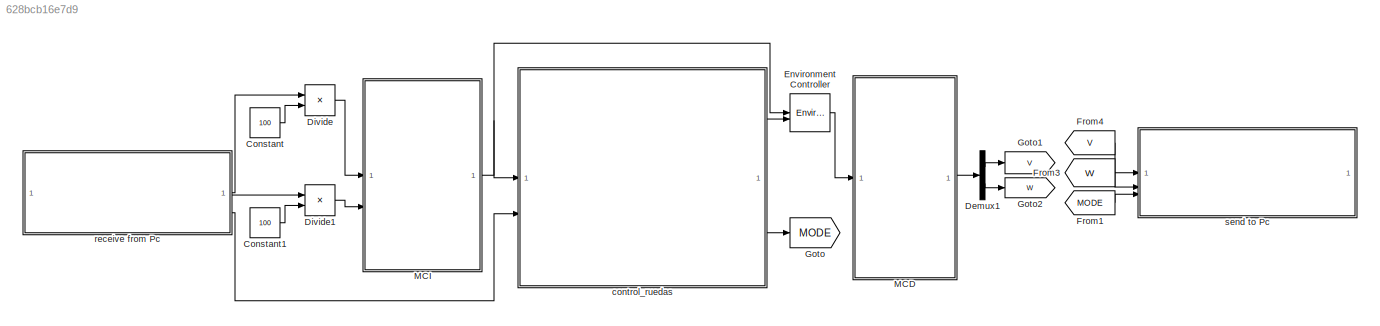
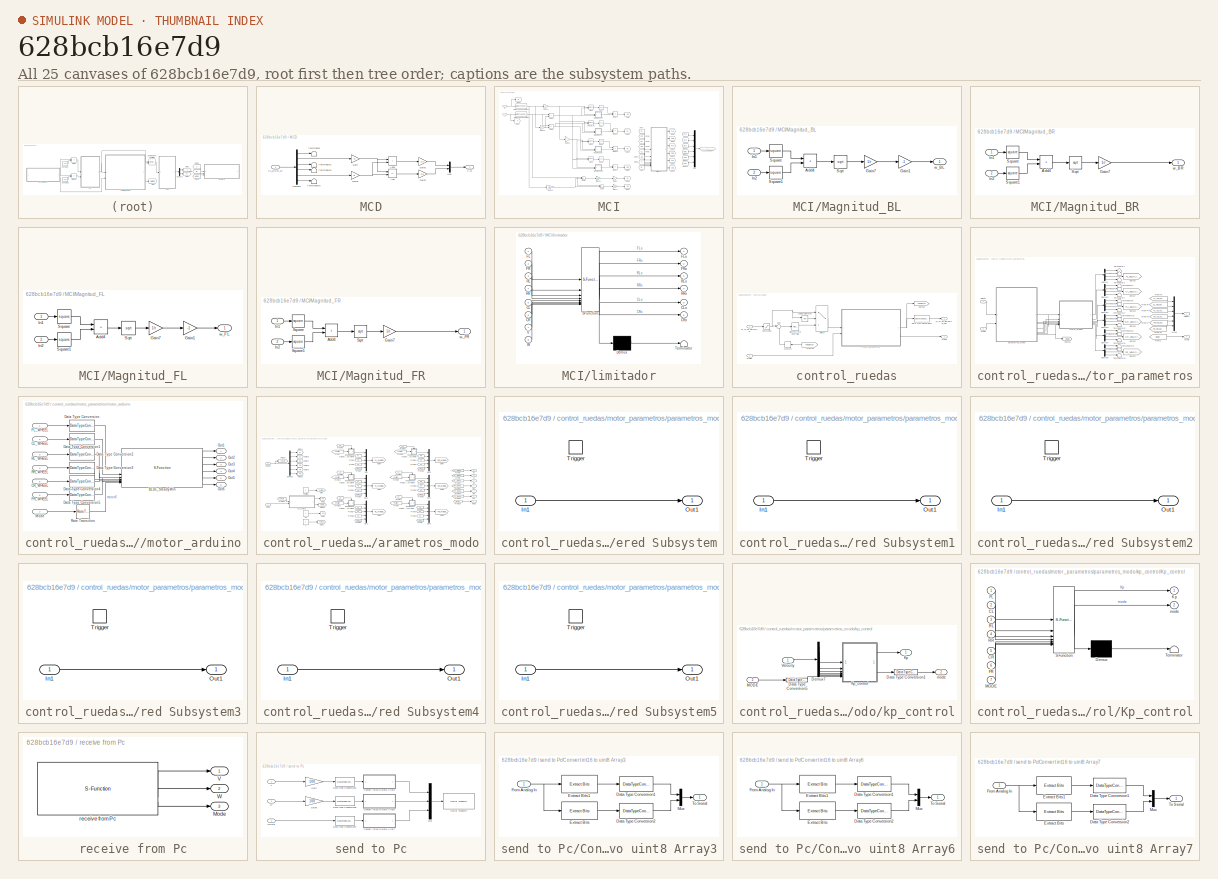
[diagram: thumbnail index - all 25 canvases of the model, root first then tree order]
MODEL slx_628bcb16e7d9
KIND model
CONFIG AbsTol = auto
CONFIG EnableMultiTasking = on
CONFIG FixedStep = auto
CONFIG InitFcn = R=0.0875;\nLx=0.24;\nLy=0.279;\nb=0.558;\nr=R;\nTs=0.01;\ncal_time=1;
CONFIG MaxStep = 0.01
CONFIG MinStep = auto
CONFIG RelTol = 1e-3
CONFIG SampleTimeConstraint = Unconstrained
CONFIG SolverName = FixedStepAuto
CONFIG StartTime = 0.0
CONFIG StopTime = inf
BLOCK [Constant] Constant
  OutDataTypeStr = single
  Value = 100
BLOCK [Constant] Constant1
  OutDataTypeStr = single
  Value = 100
BLOCK [Demux] Demux1
  Outputs = 2
BLOCK [Product] Divide
  Inputs = */
BLOCK [Product] Divide1
  Inputs = */
BLOCK [Reference] Environment Controller  REF=simulink_need_slupdate/Environment
Controller
  SourceBlock = simulink_need_slupdate/Environment\nController
  SourceType = Environment Controller
BLOCK [From] From1
  GotoTag = MODE
BLOCK [From] From3
  GotoTag = W
BLOCK [From] From4
  GotoTag = V
BLOCK [Goto] Goto
  GotoTag = MODE
BLOCK [Goto] Goto1
  GotoTag = V
BLOCK [Goto] Goto2
  GotoTag = W
BLOCK [SubSystem] MCD
BLOCK [Sum] MCD/Add
  IconShape = rectangular
  Inputs = -+
BLOCK [Sum] MCD/Add1
  IconShape = rectangular
BLOCK [Inport] MCD/CL_W,CR_W
BLOCK [Demux] MCD/Demux1
  Outputs = 6
BLOCK [Gain] MCD/Gain
  Gain = -R
BLOCK [Gain] MCD/Gain1
  Gain = R
BLOCK [Gain] MCD/Gain2
  Gain = 1/2
BLOCK [Gain] MCD/Gain3
  Gain = 1/b
  ParamDataTypeStr = double
BLOCK [Mux] MCD/Mux
  DisplayOption = bar
  Inputs = 2
BLOCK [Terminator] MCD/Terminator
BLOCK [Terminator] MCD/Terminator1
BLOCK [Terminator] MCD/Terminator2
BLOCK [Terminator] MCD/Terminator3
BLOCK [Outport] MCD/V,W
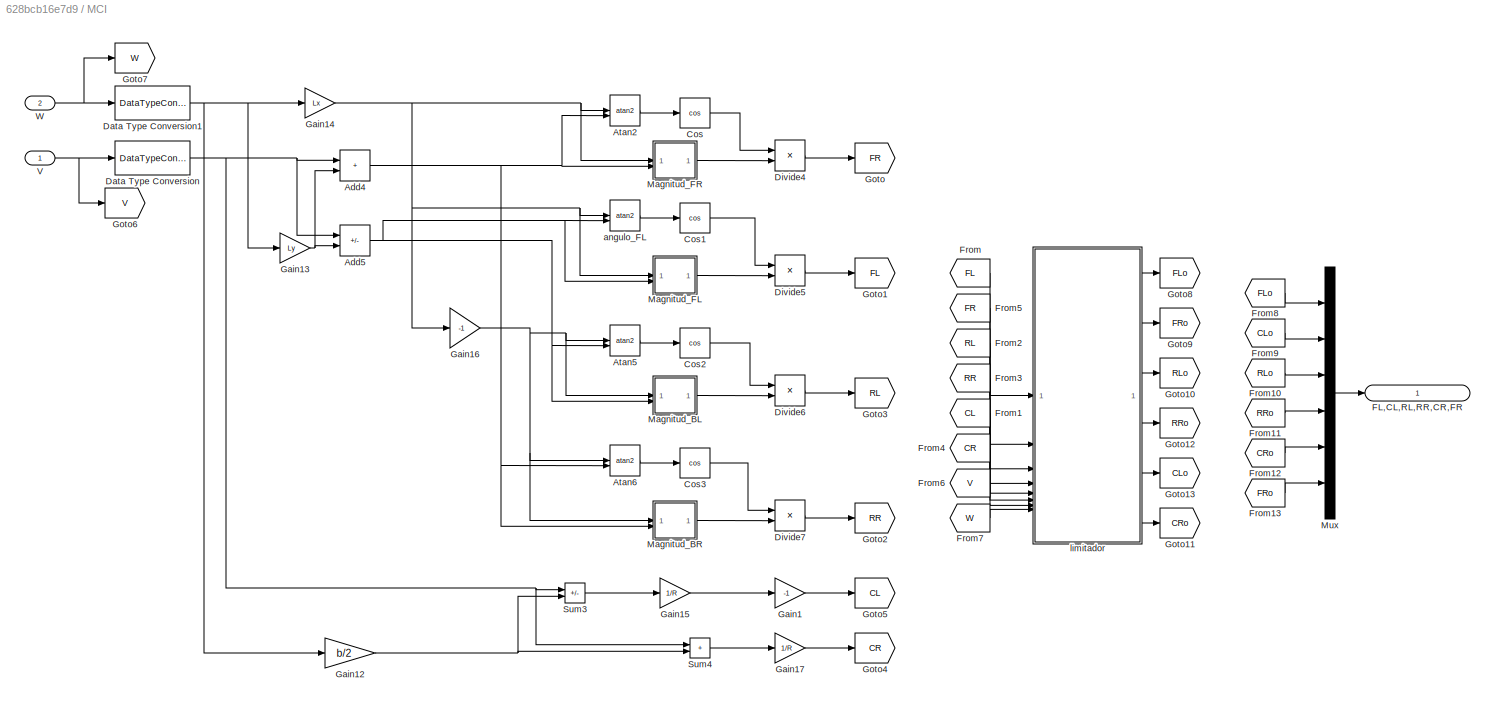
BLOCK [SubSystem] MCI
BLOCK [Sum] MCI/Add4
  IconShape = rectangular
BLOCK [Sum] MCI/Add5
  IconShape = rectangular
  Inputs = +-
BLOCK [Trigonometry] MCI/Atan2
  Operator = atan2
BLOCK [Trigonometry] MCI/Atan5
  Operator = atan2
BLOCK [Trigonometry] MCI/Atan6
  Operator = atan2
BLOCK [Trigonometry] MCI/Cos
  Operator = cos
BLOCK [Trigonometry] MCI/Cos1
  Operator = cos
BLOCK [Trigonometry] MCI/Cos2
  Operator = cos
BLOCK [Trigonometry] MCI/Cos3
  Operator = cos
BLOCK [DataTypeConversion] MCI/Data Type Conversion
  OutDataTypeStr = double
  RndMeth = Floor
  SaturateOnIntegerOverflow = off
BLOCK [DataTypeConversion] MCI/Data Type Conversion1
  OutDataTypeStr = double
  RndMeth = Floor
  SaturateOnIntegerOverflow = off
BLOCK [Product] MCI/Divide4
  Inputs = /*
BLOCK [Product] MCI/Divide5
  Inputs = /*
BLOCK [Product] MCI/Divide6
  Inputs = /*
BLOCK [Product] MCI/Divide7
  Inputs = /*
BLOCK [Outport] MCI/FL,CL,RL,RR,CR,FR
BLOCK [From] MCI/From
  GotoTag = FL
BLOCK [From] MCI/From1
  GotoTag = CL
BLOCK [From] MCI/From10
  GotoTag = RLo
BLOCK [From] MCI/From11
  GotoTag = RRo
BLOCK [From] MCI/From12
  GotoTag = CRo
BLOCK [From] MCI/From13
  GotoTag = FRo
BLOCK [From] MCI/From2
  GotoTag = RL
BLOCK [From] MCI/From3
  GotoTag = RR
BLOCK [From] MCI/From4
  GotoTag = CR
BLOCK [From] MCI/From5
  GotoTag = FR
BLOCK [From] MCI/From6
  GotoTag = V
BLOCK [From] MCI/From7
  GotoTag = W
BLOCK [From] MCI/From8
  GotoTag = FLo
BLOCK [From] MCI/From9
  GotoTag = CLo
BLOCK [Gain] MCI/Gain1
  Gain = -1
BLOCK [Gain] MCI/Gain12
  Gain = b/2
BLOCK [Gain] MCI/Gain13
  Gain = Ly
BLOCK [Gain] MCI/Gain14
  Gain = Lx
BLOCK [Gain] MCI/Gain15
  Gain = 1/R
BLOCK [Gain] MCI/Gain16
  Gain = -1
BLOCK [Gain] MCI/Gain17
  Gain = 1/R
BLOCK [Goto] MCI/Goto
  GotoTag = FR
BLOCK [Goto] MCI/Goto1
  GotoTag = FL
BLOCK [Goto] MCI/Goto10
  GotoTag = RLo
BLOCK [Goto] MCI/Goto11
  GotoTag = CRo
BLOCK [Goto] MCI/Goto12
  GotoTag = RRo
BLOCK [Goto] MCI/Goto13
  GotoTag = CLo
BLOCK [Goto] MCI/Goto2
  GotoTag = RR
BLOCK [Goto] MCI/Goto3
  GotoTag = RL
BLOCK [Goto] MCI/Goto4
  GotoTag = CR
BLOCK [Goto] MCI/Goto5
  GotoTag = CL
BLOCK [Goto] MCI/Goto6
  GotoTag = V
BLOCK [Goto] MCI/Goto7
  GotoTag = W
BLOCK [Goto] MCI/Goto8
  GotoTag = FLo
BLOCK [Goto] MCI/Goto9
  GotoTag = FRo
BLOCK [SubSystem] MCI/Magnitud_BL
BLOCK [Sum] MCI/Magnitud_BL/Add4
  IconShape = rectangular
BLOCK [Gain] MCI/Magnitud_BL/Gain1
  Gain = -1
BLOCK [Gain] MCI/Magnitud_BL/Gain7
  Gain = 1/r
BLOCK [Inport] MCI/Magnitud_BL/In1
BLOCK [Inport] MCI/Magnitud_BL/In2
  Port = 2
BLOCK [Sqrt] MCI/Magnitud_BL/Sqrt
BLOCK [Math] MCI/Magnitud_BL/Square
  Operator = square
BLOCK [Math] MCI/Magnitud_BL/Square1
  Operator = square
BLOCK [Outport] MCI/Magnitud_BL/w_BL
BLOCK [SubSystem] MCI/Magnitud_BR
BLOCK [Sum] MCI/Magnitud_BR/Add4
  IconShape = rectangular
BLOCK [Gain] MCI/Magnitud_BR/Gain7
  Gain = 1/r
BLOCK [Inport] MCI/Magnitud_BR/In1
BLOCK [Inport] MCI/Magnitud_BR/In2
  Port = 2
BLOCK [Sqrt] MCI/Magnitud_BR/Sqrt
BLOCK [Math] MCI/Magnitud_BR/Square
  Operator = square
BLOCK [Math] MCI/Magnitud_BR/Square1
  Operator = square
BLOCK [Outport] MCI/Magnitud_BR/w_BR
BLOCK [SubSystem] MCI/Magnitud_FL
BLOCK [Sum] MCI/Magnitud_FL/Add4
  IconShape = rectangular
BLOCK [Gain] MCI/Magnitud_FL/Gain1
  Gain = -1
BLOCK [Gain] MCI/Magnitud_FL/Gain7
  Gain = 1/r
BLOCK [Inport] MCI/Magnitud_FL/In1
BLOCK [Inport] MCI/Magnitud_FL/In2
  Port = 2
BLOCK [Sqrt] MCI/Magnitud_FL/Sqrt
BLOCK [Math] MCI/Magnitud_FL/Square
  Operator = square
BLOCK [Math] MCI/Magnitud_FL/Square1
  Operator = square
BLOCK [Outport] MCI/Magnitud_FL/w_FL
BLOCK [SubSystem] MCI/Magnitud_FR
BLOCK [Sum] MCI/Magnitud_FR/Add4
  IconShape = rectangular
BLOCK [Gain] MCI/Magnitud_FR/Gain7
  Gain = 1/r
BLOCK [Inport] MCI/Magnitud_FR/In1
BLOCK [Inport] MCI/Magnitud_FR/In2
  Port = 2
BLOCK [Sqrt] MCI/Magnitud_FR/Sqrt
BLOCK [Math] MCI/Magnitud_FR/Square
  Operator = square
BLOCK [Math] MCI/Magnitud_FR/Square1
  Operator = square
BLOCK [Outport] MCI/Magnitud_FR/w_FR
BLOCK [Mux] MCI/Mux
  DisplayOption = bar
  Inputs = 6
BLOCK [Sum] MCI/Sum3
  IconShape = rectangular
  Inputs = +-
BLOCK [Sum] MCI/Sum4
  IconShape = rectangular
BLOCK [Inport] MCI/V
BLOCK [Inport] MCI/W
  Port = 2
BLOCK [Trigonometry] MCI/angulo_FL
  Operator = atan2
BLOCK [SubSystem] MCI/limitador
  ErrorFcn = Stateflow.Translate.translate
  PermitHierarchicalResolution = ExplicitOnly
  SFBlockType = MATLAB Function
  TreatAsAtomicUnit = on
BLOCK [Demux] MCI/limitador/ Demux 
  Outputs = 1
BLOCK [S-Function] MCI/limitador/ SFunction 
  EnableBusSupport = on
  FunctionName = sf_sfun
  PortCounts = [8 7]
  SFcnIsStateOwnerBlock = off
  SFunctionDeploymentMode = off
  Tag = Stateflow S-Function 2
BLOCK [Terminator] MCI/limitador/ Terminator 
BLOCK [Inport] MCI/limitador/CL
  Port = 5
BLOCK [Outport] MCI/limitador/CLo
  Port = 5
BLOCK [Inport] MCI/limitador/CR
  Port = 6
BLOCK [Outport] MCI/limitador/CRo
  Port = 6
BLOCK [Inport] MCI/limitador/FL
BLOCK [Outport] MCI/limitador/FLo
BLOCK [Inport] MCI/limitador/FR
  Port = 2
BLOCK [Outport] MCI/limitador/FRo
  Port = 2
BLOCK [Inport] MCI/limitador/RL
  Port = 3
BLOCK [Outport] MCI/limitador/RLo
  Port = 3
BLOCK [Inport] MCI/limitador/RR
  Port = 4
BLOCK [Outport] MCI/limitador/RRo
  Port = 4
BLOCK [Inport] MCI/limitador/V
  Port = 7
BLOCK [Inport] MCI/limitador/W
  Port = 8
BLOCK [SubSystem] control_ruedas
BLOCK [DataTypeConversion] control_ruedas/Data Type Conversion1
  OutDataTypeStr = double
  RndMeth = Floor
  SaturateOnIntegerOverflow = off
BLOCK [Reference] control_ruedas/Discrete PID Controller  REF=slpidlib/PID Controller
  SourceBlock = slpidlib/PID Controller
  SourceType = PID 1dof
BLOCK [Inport] control_ruedas/FL,CL,RL,RR,CR,FR
BLOCK [Outport] control_ruedas/FL,CL,RL,RR,CR,FR_VEL
BLOCK [From] control_ruedas/From48
  GotoTag = FEEDBACK
  NameLocation = top
BLOCK [Goto] control_ruedas/Goto22
  GotoTag = FEEDBACK
BLOCK [Logic] control_ruedas/Logical Operator
  AllPortsSameDT = off
  Operator = NOT
  OutDataTypeStr = boolean
BLOCK [Inport] control_ruedas/MODE
  Port = 2
BLOCK [Memory] control_ruedas/Memory
  NameLocation = top
BLOCK [Saturate] control_ruedas/Saturation
  LowerLimit = -10
  UpperLimit = 10
BLOCK [Sum] control_ruedas/Sum
  Inputs = |+-
BLOCK [Switch] control_ruedas/Switch
  Criteria = u2 ~= 0
  InputSameDT = off
  NameLocation = top
  SaturateOnIntegerOverflow = off
BLOCK [Outport] control_ruedas/mode
  Port = 2
BLOCK [SubSystem] control_ruedas/motor_parametros
BLOCK [Demux] control_ruedas/motor_parametros/Demux
BLOCK [Demux] control_ruedas/motor_parametros/Demux1
BLOCK [Demux] control_ruedas/motor_parametros/Demux2
BLOCK [Demux] control_ruedas/motor_parametros/Demux3
BLOCK [Demux] control_ruedas/motor_parametros/Demux4
BLOCK [Demux] control_ruedas/motor_parametros/Demux5
BLOCK [From] control_ruedas/motor_parametros/From18
  GotoTag = FR_VELOCITY
BLOCK [From] control_ruedas/motor_parametros/From2
  GotoTag = MODE
BLOCK [From] control_ruedas/motor_parametros/From43
  GotoTag = FL_VELOCITY
BLOCK [From] control_ruedas/motor_parametros/From44
  GotoTag = RL_VELOCITY
BLOCK [From] control_ruedas/motor_parametros/From45
  GotoTag = RR_VELOCITY
BLOCK [From] control_ruedas/motor_parametros/From46
  GotoTag = CL_VELOCITY
BLOCK [From] control_ruedas/motor_parametros/From47
  GotoTag = CR_VELOCITY
BLOCK [Goto] control_ruedas/motor_parametros/Goto16
  GotoTag = FL_VELOCITY
BLOCK [Goto] control_ruedas/motor_parametros/Goto17
  GotoTag = CL_VELOCITY
BLOCK [Goto] control_ruedas/motor_parametros/Goto18
  GotoTag = RL_VELOCITY
BLOCK [Goto] control_ruedas/motor_parametros/Goto19
  GotoTag = RR_VELOCITY
BLOCK [Goto] control_ruedas/motor_parametros/Goto20
  GotoTag = CR_VELOCITY
BLOCK [Goto] control_ruedas/motor_parametros/Goto21
  GotoTag = FR_VELOCITY
BLOCK [Goto] control_ruedas/motor_parametros/Goto31
  GotoTag = MODE
BLOCK [Inport] control_ruedas/motor_parametros/Mode
  Port = 2
BLOCK [Mux] control_ruedas/motor_parametros/Mux8
  DisplayOption = bar
  Inputs = 6
BLOCK [Terminator] control_ruedas/motor_parametros/Terminator1
BLOCK [Terminator] control_ruedas/motor_parametros/Terminator10
BLOCK [Terminator] control_ruedas/motor_parametros/Terminator11
BLOCK [Terminator] control_ruedas/motor_parametros/Terminator12
BLOCK [Terminator] control_ruedas/motor_parametros/Terminator13
BLOCK [Terminator] control_ruedas/motor_parametros/Terminator14
BLOCK [Terminator] control_ruedas/motor_parametros/Terminator15
BLOCK [Terminator] control_ruedas/motor_parametros/Terminator16
BLOCK [Terminator] control_ruedas/motor_parametros/Terminator17
BLOCK [Terminator] control_ruedas/motor_parametros/Terminator18
BLOCK [Terminator] control_ruedas/motor_parametros/Terminator2
BLOCK [Terminator] control_ruedas/motor_parametros/Terminator3
BLOCK [Terminator] control_ruedas/motor_parametros/Terminator4
BLOCK [Terminator] control_ruedas/motor_parametros/Terminator5
BLOCK [Terminator] control_ruedas/motor_parametros/Terminator6
BLOCK [Terminator] control_ruedas/motor_parametros/Terminator7
BLOCK [Terminator] control_ruedas/motor_parametros/Terminator8
BLOCK [Terminator] control_ruedas/motor_parametros/Terminator9
BLOCK [Inport] control_ruedas/motor_parametros/Velocity
BLOCK [Outport] control_ruedas/motor_parametros/mode
  Port = 2
BLOCK [SubSystem] control_ruedas/motor_parametros/motor_arduino
BLOCK [S-Function] control_ruedas/motor_parametros/motor_arduino/BLDC_SteadyWin
  CopyFcn = set_param(gcbh,'LinkStatus','none')
  EnableBusSupport = off
  FunctionName = BLDC_SteadyWin
  InitFcn = try, set_param(gcb,'FunctionName','BLDC_SteadyWin'), end
  OpenFcn = sfunctionwizard(gcbh)
  PreSaveFcn = try, set_param(gcb,'FunctionName','BLDC_SteadyWin'), end
  SFcnIsStateOwnerBlock = off
  SFunctionDeploymentMode = off
  SFunctionModules = BLDC_SteadyWin_wrapper
BLOCK [Inport] control_ruedas/motor_parametros/motor_arduino/CL_WHEEL
  Port = 2
BLOCK [Inport] control_ruedas/motor_parametros/motor_arduino/CR_WHEEL
  Port = 5
BLOCK [DataTypeConversion] control_ruedas/motor_parametros/motor_arduino/Data Type Conversion
  OutDataTypeStr = single
  RndMeth = Floor
  SaturateOnIntegerOverflow = off
BLOCK [DataTypeConversion] control_ruedas/motor_parametros/motor_arduino/Data Type Conversion1
  OutDataTypeStr = single
  RndMeth = Floor
  SaturateOnIntegerOverflow = off
BLOCK [DataTypeConversion] control_ruedas/motor_parametros/motor_arduino/Data Type Conversion2
  OutDataTypeStr = single
  RndMeth = Floor
  SaturateOnIntegerOverflow = off
BLOCK [DataTypeConversion] control_ruedas/motor_parametros/motor_arduino/Data Type Conversion3
  OutDataTypeStr = single
  RndMeth = Floor
  SaturateOnIntegerOverflow = off
BLOCK [DataTypeConversion] control_ruedas/motor_parametros/motor_arduino/Data Type Conversion4
  OutDataTypeStr = single
  RndMeth = Floor
  SaturateOnIntegerOverflow = off
BLOCK [DataTypeConversion] control_ruedas/motor_parametros/motor_arduino/Data Type Conversion5
  OutDataTypeStr = single
  RndMeth = Floor
  SaturateOnIntegerOverflow = off
BLOCK [Inport] control_ruedas/motor_parametros/motor_arduino/FL_WHEEL
BLOCK [Inport] control_ruedas/motor_parametros/motor_arduino/FR_WHEEL
  Port = 6
BLOCK [Inport] control_ruedas/motor_parametros/motor_arduino/Mode
  Port = 7
BLOCK [Outport] control_ruedas/motor_parametros/motor_arduino/Out1
BLOCK [Outport] control_ruedas/motor_parametros/motor_arduino/Out2
  Port = 2
BLOCK [Outport] control_ruedas/motor_parametros/motor_arduino/Out3
  Port = 3
BLOCK [Outport] control_ruedas/motor_parametros/motor_arduino/Out4
  Port = 4
BLOCK [Outport] control_ruedas/motor_parametros/motor_arduino/Out5
  Port = 5
BLOCK [Outport] control_ruedas/motor_parametros/motor_arduino/Out6
  Port = 6
BLOCK [Inport] control_ruedas/motor_parametros/motor_arduino/RL_WHEEL
  Port = 3
BLOCK [Inport] control_ruedas/motor_parametros/motor_arduino/RR_WHEEL
  Port = 4
BLOCK [RateTransition] control_ruedas/motor_parametros/motor_arduino/Rate Transition
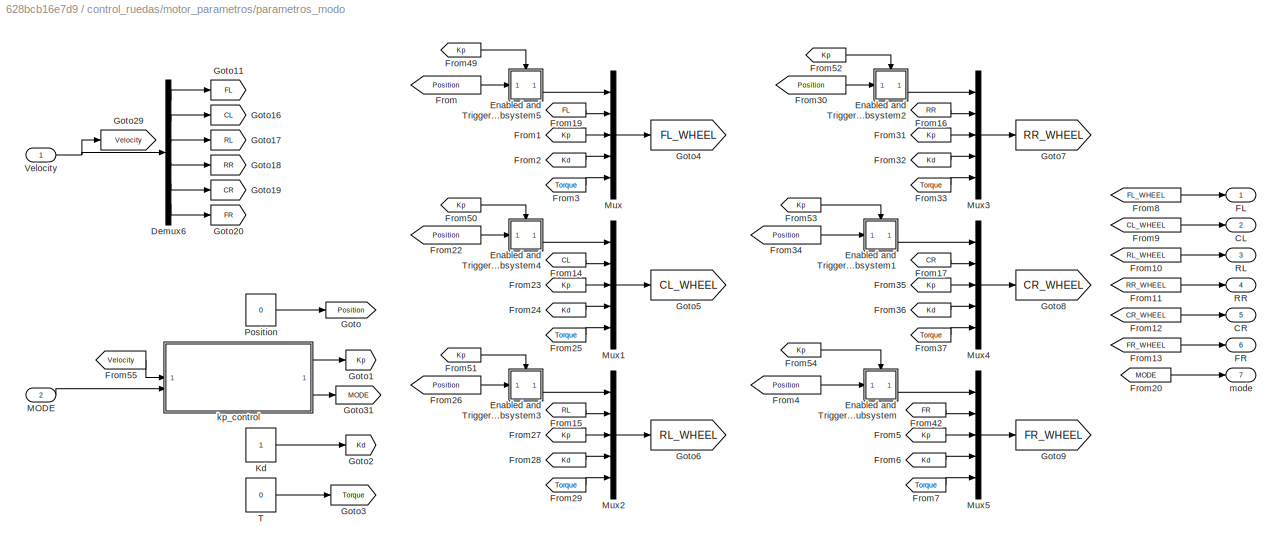
BLOCK [SubSystem] control_ruedas/motor_parametros/parametros_modo
BLOCK [Outport] control_ruedas/motor_parametros/parametros_modo/CL
  Port = 2
BLOCK [Outport] control_ruedas/motor_parametros/parametros_modo/CR
  Port = 5
BLOCK [Demux] control_ruedas/motor_parametros/parametros_modo/Demux6
  Outputs = 6
BLOCK [SubSystem] control_ruedas/motor_parametros/parametros_modo/Enabled and Triggered Subsystem
  TreatAsAtomicUnit = on
BLOCK [Inport] control_ruedas/motor_parametros/parametros_modo/Enabled and Triggered Subsystem/In1
BLOCK [Outport] control_ruedas/motor_parametros/parametros_modo/Enabled and Triggered Subsystem/Out1
BLOCK [TriggerPort] control_ruedas/motor_parametros/parametros_modo/Enabled and Triggered Subsystem/Trigger
  StatesWhenEnabling = held
  VariantControl = Variant
BLOCK [SubSystem] control_ruedas/motor_parametros/parametros_modo/Enabled and Triggered Subsystem1
  TreatAsAtomicUnit = on
BLOCK [Inport] control_ruedas/motor_parametros/parametros_modo/Enabled and Triggered Subsystem1/In1
BLOCK [Outport] control_ruedas/motor_parametros/parametros_modo/Enabled and Triggered Subsystem1/Out1
BLOCK [TriggerPort] control_ruedas/motor_parametros/parametros_modo/Enabled and Triggered Subsystem1/Trigger
  StatesWhenEnabling = held
  VariantControl = Variant
BLOCK [SubSystem] control_ruedas/motor_parametros/parametros_modo/Enabled and Triggered Subsystem2
  TreatAsAtomicUnit = on
BLOCK [Inport] control_ruedas/motor_parametros/parametros_modo/Enabled and Triggered Subsystem2/In1
BLOCK [Outport] control_ruedas/motor_parametros/parametros_modo/Enabled and Triggered Subsystem2/Out1
BLOCK [TriggerPort] control_ruedas/motor_parametros/parametros_modo/Enabled and Triggered Subsystem2/Trigger
  StatesWhenEnabling = held
  VariantControl = Variant
BLOCK [SubSystem] control_ruedas/motor_parametros/parametros_modo/Enabled and Triggered Subsystem3
  TreatAsAtomicUnit = on
BLOCK [Inport] control_ruedas/motor_parametros/parametros_modo/Enabled and Triggered Subsystem3/In1
BLOCK [Outport] control_ruedas/motor_parametros/parametros_modo/Enabled and Triggered Subsystem3/Out1
BLOCK [TriggerPort] control_ruedas/motor_parametros/parametros_modo/Enabled and Triggered Subsystem3/Trigger
  StatesWhenEnabling = held
  VariantControl = Variant
BLOCK [SubSystem] control_ruedas/motor_parametros/parametros_modo/Enabled and Triggered Subsystem4
  TreatAsAtomicUnit = on
BLOCK [Inport] control_ruedas/motor_parametros/parametros_modo/Enabled and Triggered Subsystem4/In1
BLOCK [Outport] control_ruedas/motor_parametros/parametros_modo/Enabled and Triggered Subsystem4/Out1
BLOCK [TriggerPort] control_ruedas/motor_parametros/parametros_modo/Enabled and Triggered Subsystem4/Trigger
  StatesWhenEnabling = held
  VariantControl = Variant
BLOCK [SubSystem] control_ruedas/motor_parametros/parametros_modo/Enabled and Triggered Subsystem5
  TreatAsAtomicUnit = on
BLOCK [Inport] control_ruedas/motor_parametros/parametros_modo/Enabled and Triggered Subsystem5/In1
BLOCK [Outport] control_ruedas/motor_parametros/parametros_modo/Enabled and Triggered Subsystem5/Out1
BLOCK [TriggerPort] control_ruedas/motor_parametros/parametros_modo/Enabled and Triggered Subsystem5/Trigger
  StatesWhenEnabling = held
  VariantControl = Variant
BLOCK [Outport] control_ruedas/motor_parametros/parametros_modo/FL
BLOCK [Outport] control_ruedas/motor_parametros/parametros_modo/FR
  Port = 6
BLOCK [From] control_ruedas/motor_parametros/parametros_modo/From
  GotoTag = Position
BLOCK [From] control_ruedas/motor_parametros/parametros_modo/From1
  GotoTag = Kp
BLOCK [From] control_ruedas/motor_parametros/parametros_modo/From10
  GotoTag = RL_WHEEL
BLOCK [From] control_ruedas/motor_parametros/parametros_modo/From11
  GotoTag = RR_WHEEL
BLOCK [From] control_ruedas/motor_parametros/parametros_modo/From12
  GotoTag = CR_WHEEL
BLOCK [From] control_ruedas/motor_parametros/parametros_modo/From13
  GotoTag = FR_WHEEL
BLOCK [From] control_ruedas/motor_parametros/parametros_modo/From14
  GotoTag = CL
BLOCK [From] control_ruedas/motor_parametros/parametros_modo/From15
  GotoTag = RL
BLOCK [From] control_ruedas/motor_parametros/parametros_modo/From16
  GotoTag = RR
BLOCK [From] control_ruedas/motor_parametros/parametros_modo/From17
  GotoTag = CR
BLOCK [From] control_ruedas/motor_parametros/parametros_modo/From19
  GotoTag = FL
BLOCK [From] control_ruedas/motor_parametros/parametros_modo/From2
  GotoTag = Kd
BLOCK [From] control_ruedas/motor_parametros/parametros_modo/From20
  GotoTag = MODE
BLOCK [From] control_ruedas/motor_parametros/parametros_modo/From22
  GotoTag = Position
BLOCK [From] control_ruedas/motor_parametros/parametros_modo/From23
  GotoTag = Kp
BLOCK [From] control_ruedas/motor_parametros/parametros_modo/From24
  GotoTag = Kd
BLOCK [From] control_ruedas/motor_parametros/parametros_modo/From25
  GotoTag = Torque
BLOCK [From] control_ruedas/motor_parametros/parametros_modo/From26
  GotoTag = Position
BLOCK [From] control_ruedas/motor_parametros/parametros_modo/From27
  GotoTag = Kp
BLOCK [From] control_ruedas/motor_parametros/parametros_modo/From28
  GotoTag = Kd
BLOCK [From] control_ruedas/motor_parametros/parametros_modo/From29
  GotoTag = Torque
BLOCK [From] control_ruedas/motor_parametros/parametros_modo/From3
  GotoTag = Torque
BLOCK [From] control_ruedas/motor_parametros/parametros_modo/From30
  GotoTag = Position
BLOCK [From] control_ruedas/motor_parametros/parametros_modo/From31
  GotoTag = Kp
  NameLocation = top
BLOCK [From] control_ruedas/motor_parametros/parametros_modo/From32
  GotoTag = Kd
BLOCK [From] control_ruedas/motor_parametros/parametros_modo/From33
  GotoTag = Torque
BLOCK [From] control_ruedas/motor_parametros/parametros_modo/From34
  GotoTag = Position
BLOCK [From] control_ruedas/motor_parametros/parametros_modo/From35
  GotoTag = Kp
BLOCK [From] control_ruedas/motor_parametros/parametros_modo/From36
  GotoTag = Kd
BLOCK [From] control_ruedas/motor_parametros/parametros_modo/From37
  GotoTag = Torque
BLOCK [From] control_ruedas/motor_parametros/parametros_modo/From4
  GotoTag = Position
BLOCK [From] control_ruedas/motor_parametros/parametros_modo/From42
  GotoTag = FR
BLOCK [From] control_ruedas/motor_parametros/parametros_modo/From49
  GotoTag = Kp
BLOCK [From] control_ruedas/motor_parametros/parametros_modo/From5
  GotoTag = Kp
BLOCK [From] control_ruedas/motor_parametros/parametros_modo/From50
  GotoTag = Kp
BLOCK [From] control_ruedas/motor_parametros/parametros_modo/From51
  GotoTag = Kp
BLOCK [From] control_ruedas/motor_parametros/parametros_modo/From52
  GotoTag = Kp
BLOCK [From] control_ruedas/motor_parametros/parametros_modo/From53
  GotoTag = Kp
BLOCK [From] control_ruedas/motor_parametros/parametros_modo/From54
  GotoTag = Kp
BLOCK [From] control_ruedas/motor_parametros/parametros_modo/From55
  GotoTag = Velocity
BLOCK [From] control_ruedas/motor_parametros/parametros_modo/From6
  GotoTag = Kd
BLOCK [From] control_ruedas/motor_parametros/parametros_modo/From7
  GotoTag = Torque
BLOCK [From] control_ruedas/motor_parametros/parametros_modo/From8
  GotoTag = FL_WHEEL
BLOCK [From] control_ruedas/motor_parametros/parametros_modo/From9
  GotoTag = CL_WHEEL
BLOCK [Goto] control_ruedas/motor_parametros/parametros_modo/Goto
  GotoTag = Position
BLOCK [Goto] control_ruedas/motor_parametros/parametros_modo/Goto1
  GotoTag = Kp
BLOCK [Goto] control_ruedas/motor_parametros/parametros_modo/Goto11
  GotoTag = FL
BLOCK [Goto] control_ruedas/motor_parametros/parametros_modo/Goto16
  GotoTag = CL
BLOCK [Goto] control_ruedas/motor_parametros/parametros_modo/Goto17
  GotoTag = RL
BLOCK [Goto] control_ruedas/motor_parametros/parametros_modo/Goto18
  GotoTag = RR
BLOCK [Goto] control_ruedas/motor_parametros/parametros_modo/Goto19
  GotoTag = CR
BLOCK [Goto] control_ruedas/motor_parametros/parametros_modo/Goto2
  GotoTag = Kd
BLOCK [Goto] control_ruedas/motor_parametros/parametros_modo/Goto20
  GotoTag = FR
BLOCK [Goto] control_ruedas/motor_parametros/parametros_modo/Goto29
  GotoTag = Velocity
BLOCK [Goto] control_ruedas/motor_parametros/parametros_modo/Goto3
  GotoTag = Torque
BLOCK [Goto] control_ruedas/motor_parametros/parametros_modo/Goto31
  GotoTag = MODE
BLOCK [Goto] control_ruedas/motor_parametros/parametros_modo/Goto4
  GotoTag = FL_WHEEL
BLOCK [Goto] control_ruedas/motor_parametros/parametros_modo/Goto5
  GotoTag = CL_WHEEL
BLOCK [Goto] control_ruedas/motor_parametros/parametros_modo/Goto6
  GotoTag = RL_WHEEL
BLOCK [Goto] control_ruedas/motor_parametros/parametros_modo/Goto7
  GotoTag = RR_WHEEL
BLOCK [Goto] control_ruedas/motor_parametros/parametros_modo/Goto8
  GotoTag = CR_WHEEL
BLOCK [Goto] control_ruedas/motor_parametros/parametros_modo/Goto9
  GotoTag = FR_WHEEL
BLOCK [Constant] control_ruedas/motor_parametros/parametros_modo/Kd
  SampleTime = -1
BLOCK [Inport] control_ruedas/motor_parametros/parametros_modo/MODE
  Port = 2
BLOCK [Mux] control_ruedas/motor_parametros/parametros_modo/Mux
  DisplayOption = bar
  Inputs = 5
BLOCK [Mux] control_ruedas/motor_parametros/parametros_modo/Mux1
  DisplayOption = bar
  Inputs = 5
BLOCK [Mux] control_ruedas/motor_parametros/parametros_modo/Mux2
  DisplayOption = bar
  Inputs = 5
BLOCK [Mux] control_ruedas/motor_parametros/parametros_modo/Mux3
  DisplayOption = bar
  Inputs = 5
BLOCK [Mux] control_ruedas/motor_parametros/parametros_modo/Mux4
  DisplayOption = bar
  Inputs = 5
BLOCK [Mux] control_ruedas/motor_parametros/parametros_modo/Mux5
  DisplayOption = bar
  Inputs = 5
BLOCK [Constant] control_ruedas/motor_parametros/parametros_modo/Position
  SampleTime = -1
  Value = 0
BLOCK [Outport] control_ruedas/motor_parametros/parametros_modo/RL
  Port = 3
BLOCK [Outport] control_ruedas/motor_parametros/parametros_modo/RR
  Port = 4
BLOCK [Constant] control_ruedas/motor_parametros/parametros_modo/T
  SampleTime = -1
  Value = 0
BLOCK [Inport] control_ruedas/motor_parametros/parametros_modo/Velocity
BLOCK [SubSystem] control_ruedas/motor_parametros/parametros_modo/kp_control
BLOCK [DataTypeConversion] control_ruedas/motor_parametros/parametros_modo/kp_control/Data Type Conversion1
  OutDataTypeStr = uint8
  RndMeth = Floor
  SaturateOnIntegerOverflow = off
BLOCK [DataTypeConversion] control_ruedas/motor_parametros/parametros_modo/kp_control/Data Type Conversion5
  OutDataTypeStr = double
  RndMeth = Floor
  SaturateOnIntegerOverflow = off
BLOCK [Demux] control_ruedas/motor_parametros/parametros_modo/kp_control/Demux7
  Outputs = 6
BLOCK [Outport] control_ruedas/motor_parametros/parametros_modo/kp_control/Kp
BLOCK [SubSystem] control_ruedas/motor_parametros/parametros_modo/kp_control/Kp_control
  ErrorFcn = Stateflow.Translate.translate
  PermitHierarchicalResolution = ExplicitOnly
  SFBlockType = MATLAB Function
  TreatAsAtomicUnit = on
BLOCK [Demux] control_ruedas/motor_parametros/parametros_modo/kp_control/Kp_control/ Demux 
  Outputs = 1
BLOCK [S-Function] control_ruedas/motor_parametros/parametros_modo/kp_control/Kp_control/ SFunction 
  EnableBusSupport = on
  FunctionName = sf_sfun
  PortCounts = [7 3]
  SFcnIsStateOwnerBlock = off
  SFunctionDeploymentMode = off
  Tag = Stateflow S-Function 1
BLOCK [Terminator] control_ruedas/motor_parametros/parametros_modo/kp_control/Kp_control/ Terminator 
BLOCK [Inport] control_ruedas/motor_parametros/parametros_modo/kp_control/Kp_control/CL
  Port = 2
BLOCK [Inport] control_ruedas/motor_parametros/parametros_modo/kp_control/Kp_control/CR
  Port = 5
BLOCK [Inport] control_ruedas/motor_parametros/parametros_modo/kp_control/Kp_control/FL
BLOCK [Inport] control_ruedas/motor_parametros/parametros_modo/kp_control/Kp_control/FR
  Port = 6
BLOCK [Outport] control_ruedas/motor_parametros/parametros_modo/kp_control/Kp_control/Kp
BLOCK [Inport] control_ruedas/motor_parametros/parametros_modo/kp_control/Kp_control/MODE
  Port = 7
BLOCK [Inport] control_ruedas/motor_parametros/parametros_modo/kp_control/Kp_control/RL
  Port = 3
BLOCK [Inport] control_ruedas/motor_parametros/parametros_modo/kp_control/Kp_control/RR
  Port = 4
BLOCK [Outport] control_ruedas/motor_parametros/parametros_modo/kp_control/Kp_control/mode
  Port = 2
BLOCK [Inport] control_ruedas/motor_parametros/parametros_modo/kp_control/MODE
  Port = 2
BLOCK [Inport] control_ruedas/motor_parametros/parametros_modo/kp_control/Velocity
BLOCK [Outport] control_ruedas/motor_parametros/parametros_modo/kp_control/mode
  Port = 2
BLOCK [Outport] control_ruedas/motor_parametros/parametros_modo/mode
  Port = 7
BLOCK [Outport] control_ruedas/motor_parametros/velocity
BLOCK [SubSystem] receive from Pc
BLOCK [Outport] receive from Pc/Mode
  Port = 3
BLOCK [Outport] receive from Pc/V
BLOCK [Outport] receive from Pc/W
  Port = 2
BLOCK [S-Function] receive from Pc/receive from Pc
  CopyFcn = set_param(gcbh,'LinkStatus','none')
  EnableBusSupport = off
  FunctionName = receive_serial
  InitFcn = try, set_param(gcb,'FunctionName','receive_serial'), end
  OpenFcn = sfunctionwizard(gcbh)
  PreSaveFcn = try, set_param(gcb,'FunctionName','receive_serial'), end
  SFcnIsStateOwnerBlock = off
  SFunctionDeploymentMode = off
  SFunctionModules = receive_serial_wrapper
BLOCK [SubSystem] send to Pc
BLOCK [SubSystem] send to Pc/Convert int16 to uint8 Array3
BLOCK [DataTypeConversion] send to Pc/Convert int16 to uint8 Array3/Data Type Conversion1
  ConvertRealWorld = Stored Integer (SI)
  OutDataTypeStr = uint8
  RndMeth = Floor
  SaturateOnIntegerOverflow = off
BLOCK [DataTypeConversion] send to Pc/Convert int16 to uint8 Array3/Data Type Conversion2
  ConvertRealWorld = Stored Integer (SI)
  OutDataTypeStr = uint8
  RndMeth = Floor
  SaturateOnIntegerOverflow = off
BLOCK [Reference] send to Pc/Convert int16 to uint8 Array3/Extract Bits  REF=simulink/Logic and Bit
Operations/Extract Bits
  SourceBlock = simulink/Logic and Bit\nOperations/Extract Bits
  SourceType = Extract Bits
BLOCK [Reference] send to Pc/Convert int16 to uint8 Array3/Extract Bits1  REF=simulink/Logic and Bit
Operations/Extract Bits
  SourceBlock = simulink/Logic and Bit\nOperations/Extract Bits
  SourceType = Extract Bits
BLOCK [Inport] send to Pc/Convert int16 to uint8 Array3/From Analog In
BLOCK [Mux] send to Pc/Convert int16 to uint8 Array3/Mux
  DisplayOption = bar
  Inputs = 2
BLOCK [Outport] send to Pc/Convert int16 to uint8 Array3/To Serial
BLOCK [SubSystem] send to Pc/Convert int16 to uint8 Array6
BLOCK [DataTypeConversion] send to Pc/Convert int16 to uint8 Array6/Data Type Conversion1
  ConvertRealWorld = Stored Integer (SI)
  OutDataTypeStr = uint8
  RndMeth = Floor
  SaturateOnIntegerOverflow = off
BLOCK [DataTypeConversion] send to Pc/Convert int16 to uint8 Array6/Data Type Conversion2
  ConvertRealWorld = Stored Integer (SI)
  OutDataTypeStr = uint8
  RndMeth = Floor
  SaturateOnIntegerOverflow = off
BLOCK [Reference] send to Pc/Convert int16 to uint8 Array6/Extract Bits  REF=simulink/Logic and Bit
Operations/Extract Bits
  SourceBlock = simulink/Logic and Bit\nOperations/Extract Bits
  SourceType = Extract Bits
BLOCK [Reference] send to Pc/Convert int16 to uint8 Array6/Extract Bits1  REF=simulink/Logic and Bit
Operations/Extract Bits
  SourceBlock = simulink/Logic and Bit\nOperations/Extract Bits
  SourceType = Extract Bits
BLOCK [Inport] send to Pc/Convert int16 to uint8 Array6/From Analog In
BLOCK [Mux] send to Pc/Convert int16 to uint8 Array6/Mux
  DisplayOption = bar
  Inputs = 2
BLOCK [Outport] send to Pc/Convert int16 to uint8 Array6/To Serial
BLOCK [SubSystem] send to Pc/Convert int16 to uint8 Array7
BLOCK [DataTypeConversion] send to Pc/Convert int16 to uint8 Array7/Data Type Conversion1
  ConvertRealWorld = Stored Integer (SI)
  OutDataTypeStr = uint8
  RndMeth = Floor
  SaturateOnIntegerOverflow = off
BLOCK [DataTypeConversion] send to Pc/Convert int16 to uint8 Array7/Data Type Conversion2
  ConvertRealWorld = Stored Integer (SI)
  OutDataTypeStr = uint8
  RndMeth = Floor
  SaturateOnIntegerOverflow = off
BLOCK [Reference] send to Pc/Convert int16 to uint8 Array7/Extract Bits  REF=simulink/Logic and Bit
Operations/Extract Bits
  SourceBlock = simulink/Logic and Bit\nOperations/Extract Bits
  SourceType = Extract Bits
BLOCK [Reference] send to Pc/Convert int16 to uint8 Array7/Extract Bits1  REF=simulink/Logic and Bit
Operations/Extract Bits
  SourceBlock = simulink/Logic and Bit\nOperations/Extract Bits
  SourceType = Extract Bits
BLOCK [Inport] send to Pc/Convert int16 to uint8 Array7/From Analog In
BLOCK [Mux] send to Pc/Convert int16 to uint8 Array7/Mux
  DisplayOption = bar
  Inputs = 2
BLOCK [Outport] send to Pc/Convert int16 to uint8 Array7/To Serial
BLOCK [DataTypeConversion] send to Pc/Data Type Conversion1
  ConvertRealWorld = Stored Integer (SI)
  OutDataTypeStr = int16
  RndMeth = Floor
  SaturateOnIntegerOverflow = off
BLOCK [DataTypeConversion] send to Pc/Data Type Conversion6
  ConvertRealWorld = Stored Integer (SI)
  OutDataTypeStr = int16
  RndMeth = Floor
  SaturateOnIntegerOverflow = off
BLOCK [DataTypeConversion] send to Pc/Data Type Conversion7
  ConvertRealWorld = Stored Integer (SI)
  OutDataTypeStr = int16
  RndMeth = Floor
  SaturateOnIntegerOverflow = off
BLOCK [Gain] send to Pc/Gain
  Gain = 100
BLOCK [Gain] send to Pc/Gain5
  Gain = 100
BLOCK [Inport] send to Pc/MODE
  Port = 3
BLOCK [Mux] send to Pc/Mux
  DisplayOption = bar
  Inputs = 3
BLOCK [Reference] send to Pc/Serial Transmit  REF=arduinolib/Serial Transmit
  SourceBlock = arduinolib/Serial Transmit
  SourceType = Arduino Serial Transmit
BLOCK [Inport] send to Pc/V
BLOCK [Inport] send to Pc/W
  Port = 2
LINE Constant1:1 -> Divide1:2
LINE Constant:1 -> Divide:2
LINE Demux1:1 -> Goto1:1
LINE Demux1:2 -> Goto2:1
LINE Divide1:1 -> MCI:2
LINE Divide:1 -> MCI:1
LINE Environment Controller:1 -> MCD:1
LINE From1:1 -> send to Pc:3
LINE From3:1 -> send to Pc:2
LINE From4:1 -> send to Pc:1
LINE MCD/Add1:1 -> MCD/Gain2:1
LINE MCD/Add:1 -> MCD/Gain3:1
LINE MCD/CL_W,CR_W:1 -> MCD/Demux1:1
LINE MCD/Demux1:1 -> MCD/Terminator:1
LINE MCD/Demux1:2 -> MCD/Gain:1
LINE MCD/Demux1:3 -> MCD/Terminator1:1
LINE MCD/Demux1:4 -> MCD/Terminator2:1
LINE MCD/Demux1:5 -> MCD/Gain1:1
LINE MCD/Demux1:6 -> MCD/Terminator3:1
NET MCD/Gain1:1 -> MCD/Add1:2, MCD/Add:2
LINE MCD/Gain2:1 -> MCD/Mux:1
LINE MCD/Gain3:1 -> MCD/Mux:2
NET MCD/Gain:1 -> MCD/Add1:1, MCD/Add:1
LINE MCD/Mux:1 -> MCD/V,W:1
LINE MCD:1 -> Demux1:1
NET MCI/Add4:1 -> MCI/Atan2:2, MCI/Atan6:2, MCI/Magnitud_BR:2, MCI/Magnitud_FR:2
NET MCI/Add5:1 -> MCI/Atan5:2, MCI/Magnitud_BL:2, MCI/Magnitud_FL:2, MCI/angulo_FL:2
LINE MCI/Atan2:1 -> MCI/Cos:1
LINE MCI/Atan5:1 -> MCI/Cos2:1
LINE MCI/Atan6:1 -> MCI/Cos3:1
LINE MCI/Cos1:1 -> MCI/Divide5:1
LINE MCI/Cos2:1 -> MCI/Divide6:1
LINE MCI/Cos3:1 -> MCI/Divide7:1
LINE MCI/Cos:1 -> MCI/Divide4:1
NET MCI/Data Type Conversion1:1 -> MCI/Gain12:1, MCI/Gain13:1, MCI/Gain14:1
NET MCI/Data Type Conversion:1 -> MCI/Add4:1, MCI/Add5:1, MCI/Sum3:1, MCI/Sum4:1
LINE MCI/Divide4:1 -> MCI/Goto:1
LINE MCI/Divide5:1 -> MCI/Goto1:1
LINE MCI/Divide6:1 -> MCI/Goto3:1
LINE MCI/Divide7:1 -> MCI/Goto2:1
LINE MCI/From10:1 -> MCI/Mux:3
LINE MCI/From11:1 -> MCI/Mux:4
LINE MCI/From12:1 -> MCI/Mux:5
LINE MCI/From13:1 -> MCI/Mux:6
LINE MCI/From1:1 -> MCI/limitador:5
LINE MCI/From2:1 -> MCI/limitador:3
LINE MCI/From3:1 -> MCI/limitador:4
LINE MCI/From4:1 -> MCI/limitador:6
LINE MCI/From5:1 -> MCI/limitador:2
LINE MCI/From6:1 -> MCI/limitador:7
LINE MCI/From7:1 -> MCI/limitador:8
LINE MCI/From8:1 -> MCI/Mux:1
LINE MCI/From9:1 -> MCI/Mux:2
LINE MCI/From:1 -> MCI/limitador:1
NET MCI/Gain12:1 -> MCI/Sum3:2, MCI/Sum4:2
NET MCI/Gain13:1 -> MCI/Add4:2, MCI/Add5:2
NET MCI/Gain14:1 -> MCI/Atan2:1, MCI/Gain16:1, MCI/Magnitud_FL:1, MCI/Magnitud_FR:1, MCI/angulo_FL:1
LINE MCI/Gain15:1 -> MCI/Gain1:1
NET MCI/Gain16:1 -> MCI/Atan5:1, MCI/Atan6:1, MCI/Magnitud_BL:1, MCI/Magnitud_BR:1
LINE MCI/Gain17:1 -> MCI/Goto4:1
LINE MCI/Gain1:1 -> MCI/Goto5:1
LINE MCI/Magnitud_BL/Add4:1 -> MCI/Magnitud_BL/Sqrt:1
LINE MCI/Magnitud_BL/Gain1:1 -> MCI/Magnitud_BL/w_BL:1
LINE MCI/Magnitud_BL/Gain7:1 -> MCI/Magnitud_BL/Gain1:1
LINE MCI/Magnitud_BL/In1:1 -> MCI/Magnitud_BL/Square:1
LINE MCI/Magnitud_BL/In2:1 -> MCI/Magnitud_BL/Square1:1
LINE MCI/Magnitud_BL/Sqrt:1 -> MCI/Magnitud_BL/Gain7:1
LINE MCI/Magnitud_BL/Square1:1 -> MCI/Magnitud_BL/Add4:2
LINE MCI/Magnitud_BL/Square:1 -> MCI/Magnitud_BL/Add4:1
LINE MCI/Magnitud_BL:1 -> MCI/Divide6:2
LINE MCI/Magnitud_BR/Add4:1 -> MCI/Magnitud_BR/Sqrt:1
LINE MCI/Magnitud_BR/Gain7:1 -> MCI/Magnitud_BR/w_BR:1
LINE MCI/Magnitud_BR/In1:1 -> MCI/Magnitud_BR/Square:1
LINE MCI/Magnitud_BR/In2:1 -> MCI/Magnitud_BR/Square1:1
LINE MCI/Magnitud_BR/Sqrt:1 -> MCI/Magnitud_BR/Gain7:1
LINE MCI/Magnitud_BR/Square1:1 -> MCI/Magnitud_BR/Add4:2
LINE MCI/Magnitud_BR/Square:1 -> MCI/Magnitud_BR/Add4:1
LINE MCI/Magnitud_BR:1 -> MCI/Divide7:2
LINE MCI/Magnitud_FL/Add4:1 -> MCI/Magnitud_FL/Sqrt:1
LINE MCI/Magnitud_FL/Gain1:1 -> MCI/Magnitud_FL/w_FL:1
LINE MCI/Magnitud_FL/Gain7:1 -> MCI/Magnitud_FL/Gain1:1
LINE MCI/Magnitud_FL/In1:1 -> MCI/Magnitud_FL/Square:1
LINE MCI/Magnitud_FL/In2:1 -> MCI/Magnitud_FL/Square1:1
LINE MCI/Magnitud_FL/Sqrt:1 -> MCI/Magnitud_FL/Gain7:1
LINE MCI/Magnitud_FL/Square1:1 -> MCI/Magnitud_FL/Add4:2
LINE MCI/Magnitud_FL/Square:1 -> MCI/Magnitud_FL/Add4:1
LINE MCI/Magnitud_FL:1 -> MCI/Divide5:2
LINE MCI/Magnitud_FR/Add4:1 -> MCI/Magnitud_FR/Sqrt:1
LINE MCI/Magnitud_FR/Gain7:1 -> MCI/Magnitud_FR/w_FR:1
LINE MCI/Magnitud_FR/In1:1 -> MCI/Magnitud_FR/Square:1
LINE MCI/Magnitud_FR/In2:1 -> MCI/Magnitud_FR/Square1:1
LINE MCI/Magnitud_FR/Sqrt:1 -> MCI/Magnitud_FR/Gain7:1
LINE MCI/Magnitud_FR/Square1:1 -> MCI/Magnitud_FR/Add4:2
LINE MCI/Magnitud_FR/Square:1 -> MCI/Magnitud_FR/Add4:1
LINE MCI/Magnitud_FR:1 -> MCI/Divide4:2
LINE MCI/Mux:1 -> MCI/FL,CL,RL,RR,CR,FR:1
LINE MCI/Sum3:1 -> MCI/Gain15:1
LINE MCI/Sum4:1 -> MCI/Gain17:1
NET MCI/V:1 -> MCI/Data Type Conversion:1, MCI/Goto6:1
NET MCI/W:1 -> MCI/Data Type Conversion1:1, MCI/Goto7:1
LINE MCI/angulo_FL:1 -> MCI/Cos1:1
LINE MCI/limitador:1 -> MCI/Goto8:1
LINE MCI/limitador:2 -> MCI/Goto9:1
LINE MCI/limitador:3 -> MCI/Goto10:1
LINE MCI/limitador:4 -> MCI/Goto12:1
LINE MCI/limitador:5 -> MCI/Goto13:1
LINE MCI/limitador:6 -> MCI/Goto11:1
NET MCI:1 -> Environment Controller:1, control_ruedas:1
LINE control_ruedas/Data Type Conversion1:1 -> control_ruedas/FL,CL,RL,RR,CR,FR_VEL:1
LINE control_ruedas/Discrete PID Controller:1 -> control_ruedas/Switch:3
LINE control_ruedas/FL,CL,RL,RR,CR,FR:1 -> control_ruedas/Saturation:1
LINE control_ruedas/From48:1 -> control_ruedas/Memory:1
LINE control_ruedas/Logical Operator:1 -> control_ruedas/Switch:2
LINE control_ruedas/MODE:1 -> control_ruedas/motor_parametros:2
LINE control_ruedas/Memory:1 -> control_ruedas/Sum:2
NET control_ruedas/Saturation:1 -> control_ruedas/Logical Operator:1, control_ruedas/Sum:1, control_ruedas/Switch:1
LINE control_ruedas/Sum:1 -> control_ruedas/Discrete PID Controller:1
LINE control_ruedas/Switch:1 -> control_ruedas/motor_parametros:1
LINE control_ruedas/motor_parametros/Demux1:1 -> control_ruedas/motor_parametros/Terminator4:1
LINE control_ruedas/motor_parametros/Demux1:2 -> control_ruedas/motor_parametros/Terminator3:1
LINE control_ruedas/motor_parametros/Demux1:3 -> control_ruedas/motor_parametros/Goto17:1
LINE control_ruedas/motor_parametros/Demux1:4 -> control_ruedas/motor_parametros/Terminator7:1
LINE control_ruedas/motor_parametros/Demux2:1 -> control_ruedas/motor_parametros/Terminator6:1
LINE control_ruedas/motor_parametros/Demux2:2 -> control_ruedas/motor_parametros/Terminator5:1
LINE control_ruedas/motor_parametros/Demux2:3 -> control_ruedas/motor_parametros/Goto18:1
LINE control_ruedas/motor_parametros/Demux2:4 -> control_ruedas/motor_parametros/Terminator17:1
LINE control_ruedas/motor_parametros/Demux3:1 -> control_ruedas/motor_parametros/Terminator10:1
LINE control_ruedas/motor_parametros/Demux3:2 -> control_ruedas/motor_parametros/Terminator9:1
LINE control_ruedas/motor_parametros/Demux3:3 -> control_ruedas/motor_parametros/Goto19:1
LINE control_ruedas/motor_parametros/Demux3:4 -> control_ruedas/motor_parametros/Terminator12:1
LINE control_ruedas/motor_parametros/Demux4:1 -> control_ruedas/motor_parametros/Terminator8:1
LINE control_ruedas/motor_parametros/Demux4:2 -> control_ruedas/motor_parametros/Terminator11:1
LINE control_ruedas/motor_parametros/Demux4:3 -> control_ruedas/motor_parametros/Goto20:1
LINE control_ruedas/motor_parametros/Demux4:4 -> control_ruedas/motor_parametros/Terminator16:1
LINE control_ruedas/motor_parametros/Demux5:1 -> control_ruedas/motor_parametros/Terminator14:1
LINE control_ruedas/motor_parametros/Demux5:2 -> control_ruedas/motor_parametros/Terminator13:1
LINE control_ruedas/motor_parametros/Demux5:3 -> control_ruedas/motor_parametros/Goto21:1
LINE control_ruedas/motor_parametros/Demux5:4 -> control_ruedas/motor_parametros/Terminator15:1
LINE control_ruedas/motor_parametros/Demux:1 -> control_ruedas/motor_parametros/Terminator1:1
LINE control_ruedas/motor_parametros/Demux:2 -> control_ruedas/motor_parametros/Terminator18:1
LINE control_ruedas/motor_parametros/Demux:3 -> control_ruedas/motor_parametros/Goto16:1
LINE control_ruedas/motor_parametros/Demux:4 -> control_ruedas/motor_parametros/Terminator2:1
LINE control_ruedas/motor_parametros/From18:1 -> control_ruedas/motor_parametros/Mux8:6
LINE control_ruedas/motor_parametros/From2:1 -> control_ruedas/motor_parametros/mode:1
LINE control_ruedas/motor_parametros/From43:1 -> control_ruedas/motor_parametros/Mux8:1
LINE control_ruedas/motor_parametros/From44:1 -> control_ruedas/motor_parametros/Mux8:3
LINE control_ruedas/motor_parametros/From45:1 -> control_ruedas/motor_parametros/Mux8:4
LINE control_ruedas/motor_parametros/From46:1 -> control_ruedas/motor_parametros/Mux8:2
LINE control_ruedas/motor_parametros/From47:1 -> control_ruedas/motor_parametros/Mux8:5
LINE control_ruedas/motor_parametros/Mode:1 -> control_ruedas/motor_parametros/parametros_modo:2
LINE control_ruedas/motor_parametros/Mux8:1 -> control_ruedas/motor_parametros/velocity:1
LINE control_ruedas/motor_parametros/Velocity:1 -> control_ruedas/motor_parametros/parametros_modo:1
LINE control_ruedas/motor_parametros/motor_arduino/BLDC_SteadyWin:1 -> control_ruedas/motor_parametros/motor_arduino/Out1:1
LINE control_ruedas/motor_parametros/motor_arduino/BLDC_SteadyWin:2 -> control_ruedas/motor_parametros/motor_arduino/Out2:1
LINE control_ruedas/motor_parametros/motor_arduino/BLDC_SteadyWin:3 -> control_ruedas/motor_parametros/motor_arduino/Out3:1
LINE control_ruedas/motor_parametros/motor_arduino/BLDC_SteadyWin:4 -> control_ruedas/motor_parametros/motor_arduino/Out4:1
LINE control_ruedas/motor_parametros/motor_arduino/BLDC_SteadyWin:5 -> control_ruedas/motor_parametros/motor_arduino/Out5:1
LINE control_ruedas/motor_parametros/motor_arduino/BLDC_SteadyWin:6 -> control_ruedas/motor_parametros/motor_arduino/Out6:1
LINE control_ruedas/motor_parametros/motor_arduino/CL_WHEEL:1 -> control_ruedas/motor_parametros/motor_arduino/Data Type Conversion1:1
LINE control_ruedas/motor_parametros/motor_arduino/CR_WHEEL:1 -> control_ruedas/motor_parametros/motor_arduino/Data Type Conversion4:1
LINE control_ruedas/motor_parametros/motor_arduino/Data Type Conversion1:1 -> control_ruedas/motor_parametros/motor_arduino/BLDC_SteadyWin:2
LINE control_ruedas/motor_parametros/motor_arduino/Data Type Conversion2:1 -> control_ruedas/motor_parametros/motor_arduino/BLDC_SteadyWin:3
LINE control_ruedas/motor_parametros/motor_arduino/Data Type Conversion3:1 -> control_ruedas/motor_parametros/motor_arduino/BLDC_SteadyWin:4
LINE control_ruedas/motor_parametros/motor_arduino/Data Type Conversion4:1 -> control_ruedas/motor_parametros/motor_arduino/BLDC_SteadyWin:5
LINE control_ruedas/motor_parametros/motor_arduino/Data Type Conversion5:1 -> control_ruedas/motor_parametros/motor_arduino/BLDC_SteadyWin:6
LINE control_ruedas/motor_parametros/motor_arduino/Data Type Conversion:1 -> control_ruedas/motor_parametros/motor_arduino/BLDC_SteadyWin:1
LINE control_ruedas/motor_parametros/motor_arduino/FL_WHEEL:1 -> control_ruedas/motor_parametros/motor_arduino/Data Type Conversion:1
LINE control_ruedas/motor_parametros/motor_arduino/FR_WHEEL:1 -> control_ruedas/motor_parametros/motor_arduino/Data Type Conversion5:1
LINE control_ruedas/motor_parametros/motor_arduino/Mode:1 -> control_ruedas/motor_parametros/motor_arduino/Rate Transition:1
LINE control_ruedas/motor_parametros/motor_arduino/RL_WHEEL:1 -> control_ruedas/motor_parametros/motor_arduino/Data Type Conversion2:1
LINE control_ruedas/motor_parametros/motor_arduino/RR_WHEEL:1 -> control_ruedas/motor_parametros/motor_arduino/Data Type Conversion3:1
LINE control_ruedas/motor_parametros/motor_arduino/Rate Transition:1 -> control_ruedas/motor_parametros/motor_arduino/BLDC_SteadyWin:7
LINE control_ruedas/motor_parametros/motor_arduino:1 -> control_ruedas/motor_parametros/Demux:1
LINE control_ruedas/motor_parametros/motor_arduino:2 -> control_ruedas/motor_parametros/Demux1:1
LINE control_ruedas/motor_parametros/motor_arduino:3 -> control_ruedas/motor_parametros/Demux2:1
LINE control_ruedas/motor_parametros/motor_arduino:4 -> control_ruedas/motor_parametros/Demux3:1
LINE control_ruedas/motor_parametros/motor_arduino:5 -> control_ruedas/motor_parametros/Demux4:1
LINE control_ruedas/motor_parametros/motor_arduino:6 -> control_ruedas/motor_parametros/Demux5:1
LINE control_ruedas/motor_parametros/parametros_modo/Demux6:1 -> control_ruedas/motor_parametros/parametros_modo/Goto11:1
LINE control_ruedas/motor_parametros/parametros_modo/Demux6:2 -> control_ruedas/motor_parametros/parametros_modo/Goto16:1
LINE control_ruedas/motor_parametros/parametros_modo/Demux6:3 -> control_ruedas/motor_parametros/parametros_modo/Goto17:1
LINE control_ruedas/motor_parametros/parametros_modo/Demux6:4 -> control_ruedas/motor_parametros/parametros_modo/Goto18:1
LINE control_ruedas/motor_parametros/parametros_modo/Demux6:5 -> control_ruedas/motor_parametros/parametros_modo/Goto19:1
LINE control_ruedas/motor_parametros/parametros_modo/Demux6:6 -> control_ruedas/motor_parametros/parametros_modo/Goto20:1
LINE control_ruedas/motor_parametros/parametros_modo/Enabled and Triggered Subsystem/In1:1 -> control_ruedas/motor_parametros/parametros_modo/Enabled and Triggered Subsystem/Out1:1
LINE control_ruedas/motor_parametros/parametros_modo/Enabled and Triggered Subsystem1/In1:1 -> control_ruedas/motor_parametros/parametros_modo/Enabled and Triggered Subsystem1/Out1:1
LINE control_ruedas/motor_parametros/parametros_modo/Enabled and Triggered Subsystem1:1 -> control_ruedas/motor_parametros/parametros_modo/Mux4:1
LINE control_ruedas/motor_parametros/parametros_modo/Enabled and Triggered Subsystem2/In1:1 -> control_ruedas/motor_parametros/parametros_modo/Enabled and Triggered Subsystem2/Out1:1
LINE control_ruedas/motor_parametros/parametros_modo/Enabled and Triggered Subsystem2:1 -> control_ruedas/motor_parametros/parametros_modo/Mux3:1
LINE control_ruedas/motor_parametros/parametros_modo/Enabled and Triggered Subsystem3/In1:1 -> control_ruedas/motor_parametros/parametros_modo/Enabled and Triggered Subsystem3/Out1:1
LINE control_ruedas/motor_parametros/parametros_modo/Enabled and Triggered Subsystem3:1 -> control_ruedas/motor_parametros/parametros_modo/Mux2:1
LINE control_ruedas/motor_parametros/parametros_modo/Enabled and Triggered Subsystem4/In1:1 -> control_ruedas/motor_parametros/parametros_modo/Enabled and Triggered Subsystem4/Out1:1
LINE control_ruedas/motor_parametros/parametros_modo/Enabled and Triggered Subsystem4:1 -> control_ruedas/motor_parametros/parametros_modo/Mux1:1
LINE control_ruedas/motor_parametros/parametros_modo/Enabled and Triggered Subsystem5/In1:1 -> control_ruedas/motor_parametros/parametros_modo/Enabled and Triggered Subsystem5/Out1:1
LINE control_ruedas/motor_parametros/parametros_modo/Enabled and Triggered Subsystem5:1 -> control_ruedas/motor_parametros/parametros_modo/Mux:1
LINE control_ruedas/motor_parametros/parametros_modo/Enabled and Triggered Subsystem:1 -> control_ruedas/motor_parametros/parametros_modo/Mux5:1
LINE control_ruedas/motor_parametros/parametros_modo/From10:1 -> control_ruedas/motor_parametros/parametros_modo/RL:1
LINE control_ruedas/motor_parametros/parametros_modo/From11:1 -> control_ruedas/motor_parametros/parametros_modo/RR:1
LINE control_ruedas/motor_parametros/parametros_modo/From12:1 -> control_ruedas/motor_parametros/parametros_modo/CR:1
LINE control_ruedas/motor_parametros/parametros_modo/From13:1 -> control_ruedas/motor_parametros/parametros_modo/FR:1
LINE control_ruedas/motor_parametros/parametros_modo/From14:1 -> control_ruedas/motor_parametros/parametros_modo/Mux1:2
LINE control_ruedas/motor_parametros/parametros_modo/From15:1 -> control_ruedas/motor_parametros/parametros_modo/Mux2:2
LINE control_ruedas/motor_parametros/parametros_modo/From16:1 -> control_ruedas/motor_parametros/parametros_modo/Mux3:2
LINE control_ruedas/motor_parametros/parametros_modo/From17:1 -> control_ruedas/motor_parametros/parametros_modo/Mux4:2
LINE control_ruedas/motor_parametros/parametros_modo/From19:1 -> control_ruedas/motor_parametros/parametros_modo/Mux:2
LINE control_ruedas/motor_parametros/parametros_modo/From1:1 -> control_ruedas/motor_parametros/parametros_modo/Mux:3
LINE control_ruedas/motor_parametros/parametros_modo/From20:1 -> control_ruedas/motor_parametros/parametros_modo/mode:1
LINE control_ruedas/motor_parametros/parametros_modo/From22:1 -> control_ruedas/motor_parametros/parametros_modo/Enabled and Triggered Subsystem4:1
LINE control_ruedas/motor_parametros/parametros_modo/From23:1 -> control_ruedas/motor_parametros/parametros_modo/Mux1:3
LINE control_ruedas/motor_parametros/parametros_modo/From24:1 -> control_ruedas/motor_parametros/parametros_modo/Mux1:4
LINE control_ruedas/motor_parametros/parametros_modo/From25:1 -> control_ruedas/motor_parametros/parametros_modo/Mux1:5
LINE control_ruedas/motor_parametros/parametros_modo/From26:1 -> control_ruedas/motor_parametros/parametros_modo/Enabled and Triggered Subsystem3:1
LINE control_ruedas/motor_parametros/parametros_modo/From27:1 -> control_ruedas/motor_parametros/parametros_modo/Mux2:3
LINE control_ruedas/motor_parametros/parametros_modo/From28:1 -> control_ruedas/motor_parametros/parametros_modo/Mux2:4
LINE control_ruedas/motor_parametros/parametros_modo/From29:1 -> control_ruedas/motor_parametros/parametros_modo/Mux2:5
LINE control_ruedas/motor_parametros/parametros_modo/From2:1 -> control_ruedas/motor_parametros/parametros_modo/Mux:4
LINE control_ruedas/motor_parametros/parametros_modo/From30:1 -> control_ruedas/motor_parametros/parametros_modo/Enabled and Triggered Subsystem2:1
LINE control_ruedas/motor_parametros/parametros_modo/From31:1 -> control_ruedas/motor_parametros/parametros_modo/Mux3:3
LINE control_ruedas/motor_parametros/parametros_modo/From32:1 -> control_ruedas/motor_parametros/parametros_modo/Mux3:4
LINE control_ruedas/motor_parametros/parametros_modo/From33:1 -> control_ruedas/motor_parametros/parametros_modo/Mux3:5
LINE control_ruedas/motor_parametros/parametros_modo/From34:1 -> control_ruedas/motor_parametros/parametros_modo/Enabled and Triggered Subsystem1:1
LINE control_ruedas/motor_parametros/parametros_modo/From35:1 -> control_ruedas/motor_parametros/parametros_modo/Mux4:3
LINE control_ruedas/motor_parametros/parametros_modo/From36:1 -> control_ruedas/motor_parametros/parametros_modo/Mux4:4
LINE control_ruedas/motor_parametros/parametros_modo/From37:1 -> control_ruedas/motor_parametros/parametros_modo/Mux4:5
LINE control_ruedas/motor_parametros/parametros_modo/From3:1 -> control_ruedas/motor_parametros/parametros_modo/Mux:5
LINE control_ruedas/motor_parametros/parametros_modo/From42:1 -> control_ruedas/motor_parametros/parametros_modo/Mux5:2
LINE control_ruedas/motor_parametros/parametros_modo/From49:1 -> control_ruedas/motor_parametros/parametros_modo/Enabled and Triggered Subsystem5:trigger
LINE control_ruedas/motor_parametros/parametros_modo/From4:1 -> control_ruedas/motor_parametros/parametros_modo/Enabled and Triggered Subsystem:1
LINE control_ruedas/motor_parametros/parametros_modo/From50:1 -> control_ruedas/motor_parametros/parametros_modo/Enabled and Triggered Subsystem4:trigger
LINE control_ruedas/motor_parametros/parametros_modo/From51:1 -> control_ruedas/motor_parametros/parametros_modo/Enabled and Triggered Subsystem3:trigger
LINE control_ruedas/motor_parametros/parametros_modo/From52:1 -> control_ruedas/motor_parametros/parametros_modo/Enabled and Triggered Subsystem2:trigger
LINE control_ruedas/motor_parametros/parametros_modo/From53:1 -> control_ruedas/motor_parametros/parametros_modo/Enabled and Triggered Subsystem1:trigger
LINE control_ruedas/motor_parametros/parametros_modo/From54:1 -> control_ruedas/motor_parametros/parametros_modo/Enabled and Triggered Subsystem:trigger
LINE control_ruedas/motor_parametros/parametros_modo/From55:1 -> control_ruedas/motor_parametros/parametros_modo/kp_control:1
LINE control_ruedas/motor_parametros/parametros_modo/From5:1 -> control_ruedas/motor_parametros/parametros_modo/Mux5:3
LINE control_ruedas/motor_parametros/parametros_modo/From6:1 -> control_ruedas/motor_parametros/parametros_modo/Mux5:4
LINE control_ruedas/motor_parametros/parametros_modo/From7:1 -> control_ruedas/motor_parametros/parametros_modo/Mux5:5
LINE control_ruedas/motor_parametros/parametros_modo/From8:1 -> control_ruedas/motor_parametros/parametros_modo/FL:1
LINE control_ruedas/motor_parametros/parametros_modo/From9:1 -> control_ruedas/motor_parametros/parametros_modo/CL:1
LINE control_ruedas/motor_parametros/parametros_modo/From:1 -> control_ruedas/motor_parametros/parametros_modo/Enabled and Triggered Subsystem5:1
LINE control_ruedas/motor_parametros/parametros_modo/Kd:1 -> control_ruedas/motor_parametros/parametros_modo/Goto2:1
LINE control_ruedas/motor_parametros/parametros_modo/MODE:1 -> control_ruedas/motor_parametros/parametros_modo/kp_control:2
LINE control_ruedas/motor_parametros/parametros_modo/Mux1:1 -> control_ruedas/motor_parametros/parametros_modo/Goto5:1
LINE control_ruedas/motor_parametros/parametros_modo/Mux2:1 -> control_ruedas/motor_parametros/parametros_modo/Goto6:1
LINE control_ruedas/motor_parametros/parametros_modo/Mux3:1 -> control_ruedas/motor_parametros/parametros_modo/Goto7:1
LINE control_ruedas/motor_parametros/parametros_modo/Mux4:1 -> control_ruedas/motor_parametros/parametros_modo/Goto8:1
LINE control_ruedas/motor_parametros/parametros_modo/Mux5:1 -> control_ruedas/motor_parametros/parametros_modo/Goto9:1
LINE control_ruedas/motor_parametros/parametros_modo/Mux:1 -> control_ruedas/motor_parametros/parametros_modo/Goto4:1
LINE control_ruedas/motor_parametros/parametros_modo/Position:1 -> control_ruedas/motor_parametros/parametros_modo/Goto:1
LINE control_ruedas/motor_parametros/parametros_modo/T:1 -> control_ruedas/motor_parametros/parametros_modo/Goto3:1
NET control_ruedas/motor_parametros/parametros_modo/Velocity:1 -> control_ruedas/motor_parametros/parametros_modo/Demux6:1, control_ruedas/motor_parametros/parametros_modo/Goto29:1
LINE control_ruedas/motor_parametros/parametros_modo/kp_control/Data Type Conversion1:1 -> control_ruedas/motor_parametros/parametros_modo/kp_control/mode:1
LINE control_ruedas/motor_parametros/parametros_modo/kp_control/Data Type Conversion5:1 -> control_ruedas/motor_parametros/parametros_modo/kp_control/Kp_control:7
LINE control_ruedas/motor_parametros/parametros_modo/kp_control/Demux7:1 -> control_ruedas/motor_parametros/parametros_modo/kp_control/Kp_control:1
LINE control_ruedas/motor_parametros/parametros_modo/kp_control/Demux7:2 -> control_ruedas/motor_parametros/parametros_modo/kp_control/Kp_control:2
LINE control_ruedas/motor_parametros/parametros_modo/kp_control/Demux7:3 -> control_ruedas/motor_parametros/parametros_modo/kp_control/Kp_control:3
LINE control_ruedas/motor_parametros/parametros_modo/kp_control/Demux7:4 -> control_ruedas/motor_parametros/parametros_modo/kp_control/Kp_control:4
LINE control_ruedas/motor_parametros/parametros_modo/kp_control/Demux7:5 -> control_ruedas/motor_parametros/parametros_modo/kp_control/Kp_control:5
LINE control_ruedas/motor_parametros/parametros_modo/kp_control/Demux7:6 -> control_ruedas/motor_parametros/parametros_modo/kp_control/Kp_control:6
LINE control_ruedas/motor_parametros/parametros_modo/kp_control/Kp_control:1 -> control_ruedas/motor_parametros/parametros_modo/kp_control/Kp:1
LINE control_ruedas/motor_parametros/parametros_modo/kp_control/Kp_control:2 -> control_ruedas/motor_parametros/parametros_modo/kp_control/Data Type Conversion1:1
LINE control_ruedas/motor_parametros/parametros_modo/kp_control/MODE:1 -> control_ruedas/motor_parametros/parametros_modo/kp_control/Data Type Conversion5:1
LINE control_ruedas/motor_parametros/parametros_modo/kp_control/Velocity:1 -> control_ruedas/motor_parametros/parametros_modo/kp_control/Demux7:1
LINE control_ruedas/motor_parametros/parametros_modo/kp_control:1 -> control_ruedas/motor_parametros/parametros_modo/Goto1:1
LINE control_ruedas/motor_parametros/parametros_modo/kp_control:2 -> control_ruedas/motor_parametros/parametros_modo/Goto31:1
LINE control_ruedas/motor_parametros/parametros_modo:1 -> control_ruedas/motor_parametros/motor_arduino:1
LINE control_ruedas/motor_parametros/parametros_modo:2 -> control_ruedas/motor_parametros/motor_arduino:2
LINE control_ruedas/motor_parametros/parametros_modo:3 -> control_ruedas/motor_parametros/motor_arduino:3
LINE control_ruedas/motor_parametros/parametros_modo:4 -> control_ruedas/motor_parametros/motor_arduino:4
LINE control_ruedas/motor_parametros/parametros_modo:5 -> control_ruedas/motor_parametros/motor_arduino:5
LINE control_ruedas/motor_parametros/parametros_modo:6 -> control_ruedas/motor_parametros/motor_arduino:6
NET control_ruedas/motor_parametros/parametros_modo:7 -> control_ruedas/motor_parametros/Goto31:1, control_ruedas/motor_parametros/motor_arduino:7
NET control_ruedas/motor_parametros:1 -> control_ruedas/Data Type Conversion1:1, control_ruedas/Goto22:1
LINE control_ruedas/motor_parametros:2 -> control_ruedas/mode:1
LINE control_ruedas:1 -> Environment Controller:2
LINE control_ruedas:2 -> Goto:1
LINE receive from Pc/receive from Pc:1 -> receive from Pc/V:1
LINE receive from Pc/receive from Pc:2 -> receive from Pc/W:1
LINE receive from Pc/receive from Pc:3 -> receive from Pc/Mode:1
LINE receive from Pc:1 -> Divide:1
LINE receive from Pc:2 -> Divide1:1
LINE receive from Pc:3 -> control_ruedas:2
LINE send to Pc/Convert int16 to uint8 Array3/Data Type Conversion1:1 -> send to Pc/Convert int16 to uint8 Array3/Mux:1
LINE send to Pc/Convert int16 to uint8 Array3/Data Type Conversion2:1 -> send to Pc/Convert int16 to uint8 Array3/Mux:2
LINE send to Pc/Convert int16 to uint8 Array3/Extract Bits1:1 -> send to Pc/Convert int16 to uint8 Array3/Data Type Conversion1:1
LINE send to Pc/Convert int16 to uint8 Array3/Extract Bits:1 -> send to Pc/Convert int16 to uint8 Array3/Data Type Conversion2:1
NET send to Pc/Convert int16 to uint8 Array3/From Analog In:1 -> send to Pc/Convert int16 to uint8 Array3/Extract Bits1:1, send to Pc/Convert int16 to uint8 Array3/Extract Bits:1
LINE send to Pc/Convert int16 to uint8 Array3/Mux:1 -> send to Pc/Convert int16 to uint8 Array3/To Serial:1
LINE send to Pc/Convert int16 to uint8 Array3:1 -> send to Pc/Mux:1
LINE send to Pc/Convert int16 to uint8 Array6/Data Type Conversion1:1 -> send to Pc/Convert int16 to uint8 Array6/Mux:1
LINE send to Pc/Convert int16 to uint8 Array6/Data Type Conversion2:1 -> send to Pc/Convert int16 to uint8 Array6/Mux:2
LINE send to Pc/Convert int16 to uint8 Array6/Extract Bits1:1 -> send to Pc/Convert int16 to uint8 Array6/Data Type Conversion1:1
LINE send to Pc/Convert int16 to uint8 Array6/Extract Bits:1 -> send to Pc/Convert int16 to uint8 Array6/Data Type Conversion2:1
NET send to Pc/Convert int16 to uint8 Array6/From Analog In:1 -> send to Pc/Convert int16 to uint8 Array6/Extract Bits1:1, send to Pc/Convert int16 to uint8 Array6/Extract Bits:1
LINE send to Pc/Convert int16 to uint8 Array6/Mux:1 -> send to Pc/Convert int16 to uint8 Array6/To Serial:1
LINE send to Pc/Convert int16 to uint8 Array6:1 -> send to Pc/Mux:2
LINE send to Pc/Convert int16 to uint8 Array7/Data Type Conversion1:1 -> send to Pc/Convert int16 to uint8 Array7/Mux:1
LINE send to Pc/Convert int16 to uint8 Array7/Data Type Conversion2:1 -> send to Pc/Convert int16 to uint8 Array7/Mux:2
LINE send to Pc/Convert int16 to uint8 Array7/Extract Bits1:1 -> send to Pc/Convert int16 to uint8 Array7/Data Type Conversion1:1
LINE send to Pc/Convert int16 to uint8 Array7/Extract Bits:1 -> send to Pc/Convert int16 to uint8 Array7/Data Type Conversion2:1
NET send to Pc/Convert int16 to uint8 Array7/From Analog In:1 -> send to Pc/Convert int16 to uint8 Array7/Extract Bits1:1, send to Pc/Convert int16 to uint8 Array7/Extract Bits:1
LINE send to Pc/Convert int16 to uint8 Array7/Mux:1 -> send to Pc/Convert int16 to uint8 Array7/To Serial:1
LINE send to Pc/Convert int16 to uint8 Array7:1 -> send to Pc/Mux:3
LINE send to Pc/Data Type Conversion1:1 -> send to Pc/Convert int16 to uint8 Array3:1
LINE send to Pc/Data Type Conversion6:1 -> send to Pc/Convert int16 to uint8 Array6:1
LINE send to Pc/Data Type Conversion7:1 -> send to Pc/Convert int16 to uint8 Array7:1
LINE send to Pc/Gain5:1 -> send to Pc/Data Type Conversion6:1
LINE send to Pc/Gain:1 -> send to Pc/Data Type Conversion1:1
LINE send to Pc/MODE:1 -> send to Pc/Data Type Conversion7:1
LINE send to Pc/Mux:1 -> send to Pc/Serial Transmit:1
LINE send to Pc/V:1 -> send to Pc/Gain:1
LINE send to Pc/W:1 -> send to Pc/Gain5:1
note: NET lines group one-source signal fan-out (src -> all destinations, sorted); 1:1 wires keep LINE
CHART control_ruedas/motor_parametros/parametros_modo/kp_control/Kp_control states=1 transitions=1
  STATE_LABEL 'eML_blk_kernel()'
  STATE_LABEL 'SCRIPT:\nfunction [Kp, mode] = fcn(FL,CL,RL,RR,CR,FR,MODE)\n\n    if(FL==0) && (CL==0) && (RL==0) && (RR==0) && (CR==0) && (FR==0) && (MODE==1)\n        Kp = 25;\n        mode = 2;\n    else\n        Kp = 0;\n        mode = MODE;\n    end\n    \n\n'
CHART MCI/limitador states=1 transitions=1
  STATE_LABEL 'eML_blk_kernel()'
  STATE_LABEL 'SCRIPT:\nfunction [FLo,FRo,RLo,RRo,CLo,CRo] = limitador(FL,FR,RL,RR,CL,CR,V,W)\n\ndouble CLi;\ndouble CRi;\n\nif((V~=0) && (W~=0))\n    \n        CLi=CL;\n        CRi=CR;\n        \n        if((V>0) && (CRi<0) || (V<0) && (CRi>0)) \n           CRi=0; \n        elseif((V>0) && (CLi>0) ||(V<0) && (CLi<0)) \n           CLi=0;\n        end\n        \n        CLo=CLi;\n        CRo=CRi;\n        FLo=CLi;\n        RLo=CLi;\n...<+163ch>'
CHART  states=0 transitions=0
CHART  states=0 transitions=0
